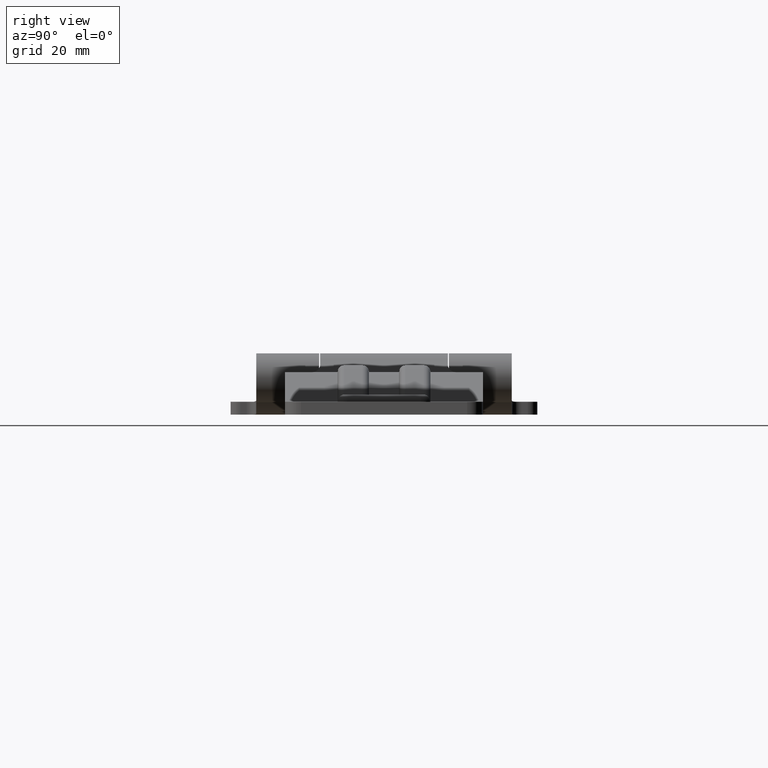
[diagram: clean part render]
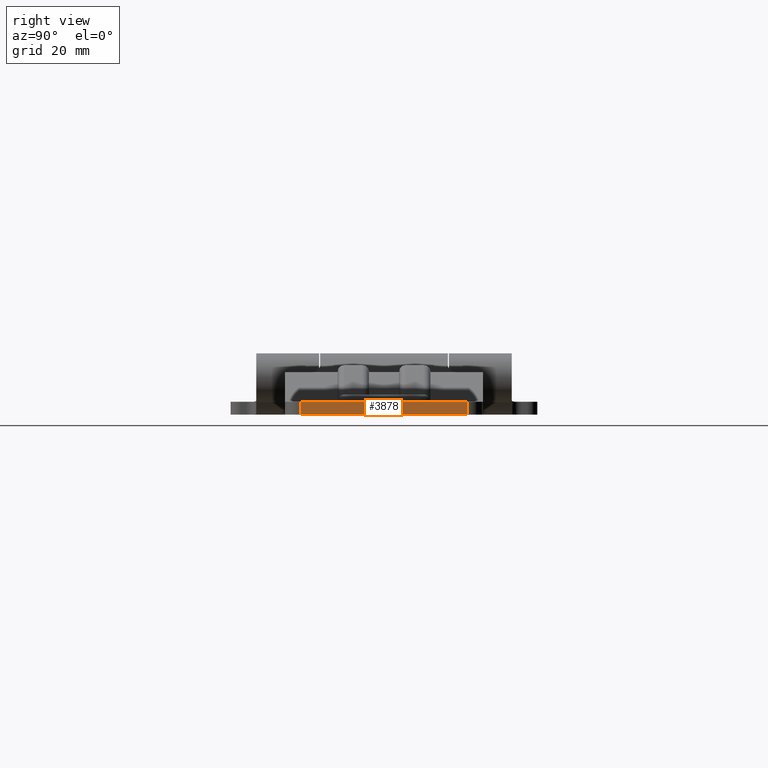
[diagram: same view with one face highlighted and labeled with its STEP entity id]
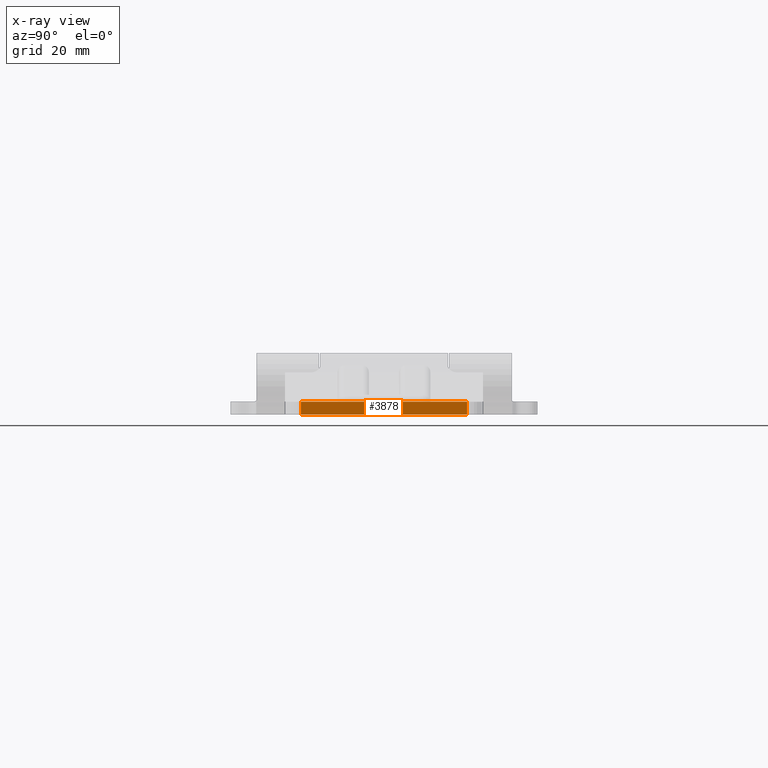
[diagram: x-ray of the same camera — body ghosted, the highlighted face saturated]
A machine part, right view. The second image highlights one B-rep face of the part: STEP entity #3878.
The next image is the same camera in x-ray: the body ghosted, the highlighted face saturated — about 0% of this face is hidden behind the body in this view.
In plain terms, the highlighted planar face has unit normal (1, 0, 0).
Its self-contained STEP definition (entity closure, byte-faithful):
#143 = DIRECTION ( 'NONE',  ( 0.0000000000000000000, 0.0000000000000000000, 1.000000000000000000 ) ) ;
#168 = CARTESIAN_POINT ( 'NONE',  ( 154.5000000000000000, 26.00000000000000000, -9.200000000000001100 ) ) ;
#614 = LINE ( 'NONE', #4606, #1351 ) ;
#702 = LINE ( 'NONE', #2962, #1339 ) ;
#707 = PLANE ( 'NONE',  #2389 ) ;
#749 = ORIENTED_EDGE ( 'NONE', *, *, #2353, .T. ) ;
#873 = ORIENTED_EDGE ( 'NONE', *, *, #2794, .T. ) ;
#1180 = VERTEX_POINT ( 'NONE', #3097 ) ;
#1339 = VECTOR ( 'NONE', #2565, 1000.000000000000000 ) ;
#1351 = VECTOR ( 'NONE', #4519, 1000.000000000000000 ) ;
#1445 = LINE ( 'NONE', #4507, #1472 ) ;
#1472 = VECTOR ( 'NONE', #4508, 1000.000000000000000 ) ;
#1518 = LINE ( 'NONE', #168, #2270 ) ;
#1740 = EDGE_LOOP ( 'NONE', ( #2462, #873, #749, #3377 ) ) ;
#2116 = DIRECTION ( 'NONE',  ( 0.0000000000000000000, 0.0000000000000000000, -1.000000000000000000 ) ) ;
#2270 = VECTOR ( 'NONE', #143, 1000.000000000000000 ) ;
#2337 = EDGE_CURVE ( 'NONE', #1180, #2817, #614, .T. ) ;
#2353 = EDGE_CURVE ( 'NONE', #3832, #2575, #1445, .T. ) ;
#2389 = AXIS2_PLACEMENT_3D ( 'NONE', #3624, #3631, #2116 ) ;
#2462 = ORIENTED_EDGE ( 'NONE', *, *, #2337, .T. ) ;
#2565 = DIRECTION ( 'NONE',  ( 0.0000000000000000000, 0.0000000000000000000, -1.000000000000000000 ) ) ;
#2575 = VERTEX_POINT ( 'NONE', #4123 ) ;
#2794 = EDGE_CURVE ( 'NONE', #2817, #3832, #702, .T. ) ;
#2817 = VERTEX_POINT ( 'NONE', #2909 ) ;
#2909 = CARTESIAN_POINT ( 'NONE',  ( 154.5000000000000000, -25.99999999999999600, -5.200000000000001100 ) ) ;
#2962 = CARTESIAN_POINT ( 'NONE',  ( 154.5000000000000000, -25.99999999999999600, -9.200000000000001100 ) ) ;
#3097 = CARTESIAN_POINT ( 'NONE',  ( 154.5000000000000000, 26.00000000000000000, -5.200000000000001100 ) ) ;
#3377 = ORIENTED_EDGE ( 'NONE', *, *, #3711, .T. ) ;
#3624 = CARTESIAN_POINT ( 'NONE',  ( 154.5000000000000000, 31.00000000000000000, -9.200000000000001100 ) ) ;
#3631 = DIRECTION ( 'NONE',  ( 1.000000000000000000, 0.0000000000000000000, 0.0000000000000000000 ) ) ;
#3711 = EDGE_CURVE ( 'NONE', #2575, #1180, #1518, .T. ) ;
#3764 = CARTESIAN_POINT ( 'NONE',  ( 154.5000000000000000, -25.99999999999999600, -9.200000000000001100 ) ) ;
#3832 = VERTEX_POINT ( 'NONE', #3764 ) ;
#3878 = ADVANCED_FACE ( 'NONE', ( #4420 ), #707, .T. ) ;
#4123 = CARTESIAN_POINT ( 'NONE',  ( 154.5000000000000000, 25.99999999999999600, -9.200000000000001100 ) ) ;
#4420 = FACE_OUTER_BOUND ( 'NONE', #1740, .T. ) ;
#4507 = CARTESIAN_POINT ( 'NONE',  ( 154.5000000000000000, -31.00000000000000000, -9.200000000000001100 ) ) ;
#4508 = DIRECTION ( 'NONE',  ( 0.0000000000000000000, 1.000000000000000000, 0.0000000000000000000 ) ) ;
#4519 = DIRECTION ( 'NONE',  ( 0.0000000000000000000, -1.000000000000000000, 0.0000000000000000000 ) ) ;
#4606 = CARTESIAN_POINT ( 'NONE',  ( 154.5000000000000000, 31.00000000000000000, -5.200000000000001100 ) ) ;